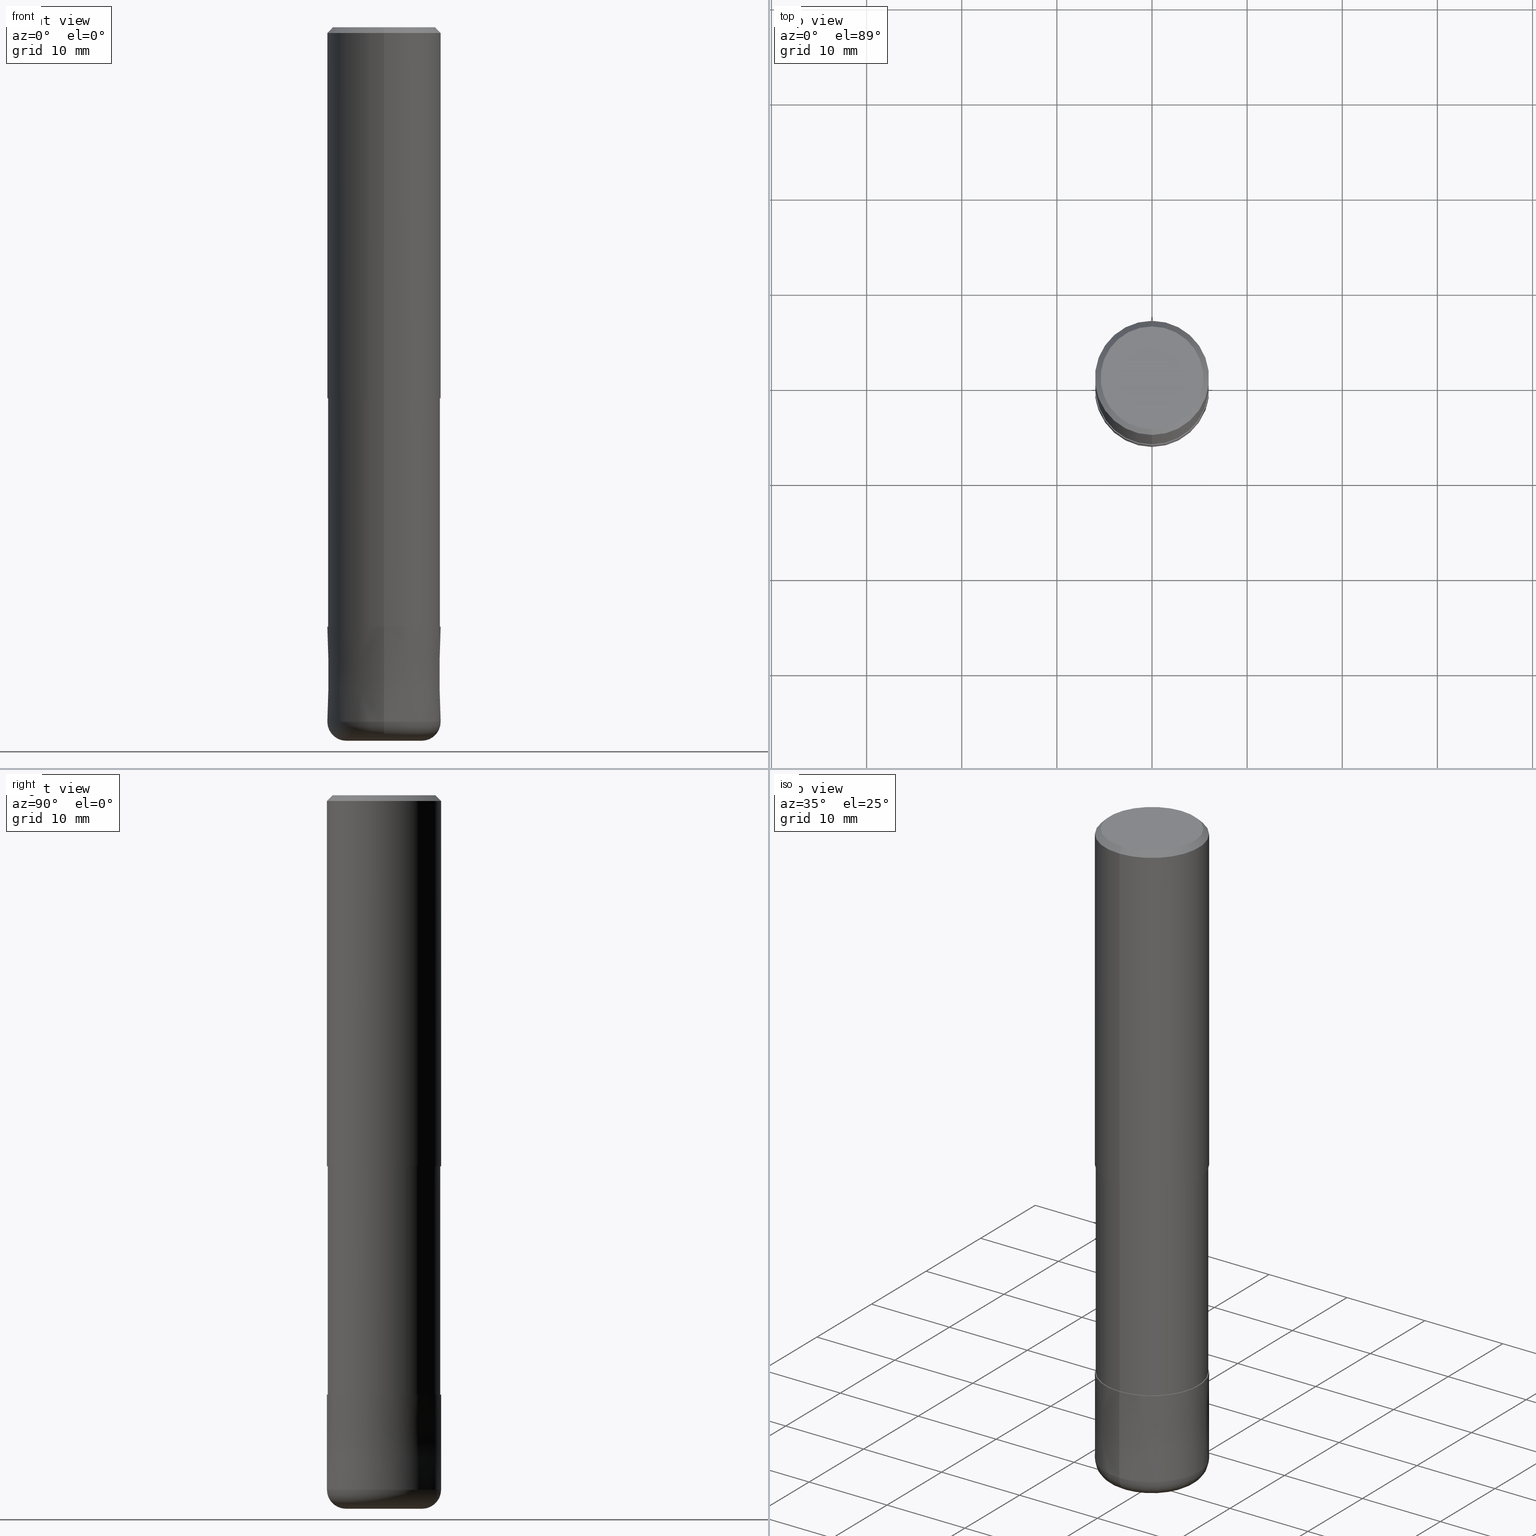
[diagram: canonical four-view strip — front | top / right | iso, engineering-drawing reading convention]
A machine part, canonical four-view strip (front | top / right | iso — engineering-drawing reading convention). The complete STEP part file that produces these views, byte-faithful:
ISO-10303-21;
HEADER;
FILE_DESCRIPTION(('no description'),'unknown implementation level');
FILE_NAME('HRRS4120-20-36S-Huellk.stp','  ',('CIMSOURCE GmbH'),('CADClick - KiM GmbH - www.kimweb.de'),'unknown preprocess','ACIS','unknown authorization');
FILE_SCHEMA(('automotive_design'));
ENDSEC;
DATA;
#1=MECHANICAL_DESIGN_GEOMETRIC_PRESENTATION_REPRESENTATION(' ',(#14,#15,#16,#17,#18,#19,#20,#21,#22,#23,#24,#25,#26,#27,#28,#29,#30,#31,#32,#33,#34,#35,#36,#37,#38,#39,#40,#41,#42,#43,#44,#45,#46,#47,#48,#49,#50,#51,#52,#53,#54,#55,#56,#57,#58,#59,#60,#61,#62,#63,#64,#65,#66,#67,#68,#69,#70,#71,#72),#10);
#2=PRODUCT_DEFINITION_CONTEXT('',#73,'design');
#3=APPLICATION_PROTOCOL_DEFINITION('INTERNATIONAL STANDARD','automotive_design',1994,#73);
#4=PRODUCT_CATEGORY_RELATIONSHIP('NONE','NONE',#74,#75);
#5=SHAPE_DEFINITION_REPRESENTATION(#76,#77);
#6=PRODUCT_DEFINITION_CONTEXT('',#78,'design');
#7=APPLICATION_PROTOCOL_DEFINITION('INTERNATIONAL STANDARD','automotive_design',1994,#78);
#8=PRODUCT_CATEGORY_RELATIONSHIP('NONE','NONE',#79,#80);
#9=SHAPE_DEFINITION_REPRESENTATION(#81,#82);
#10= (GEOMETRIC_REPRESENTATION_CONTEXT(3)GLOBAL_UNCERTAINTY_ASSIGNED_CONTEXT((#85))GLOBAL_UNIT_ASSIGNED_CONTEXT((#87,#88,#89))REPRESENTATION_CONTEXT('NONE','WORKSPACE'));
#14=STYLED_ITEM('',(#91),#92);
#15=STYLED_ITEM('',(#93),#94);
#16=STYLED_ITEM('',(#95),#96);
#17=STYLED_ITEM('',(#97),#98);
#18=STYLED_ITEM('',(#99),#100);
#19=STYLED_ITEM('',(#101),#102);
#20=STYLED_ITEM('',(#103),#104);
#21=STYLED_ITEM('',(#105),#106);
#22=STYLED_ITEM('',(#107),#108);
#23=STYLED_ITEM('',(#109),#110);
#24=STYLED_ITEM('',(#111),#112);
#25=STYLED_ITEM('',(#113),#114);
#26=STYLED_ITEM('',(#115),#116);
#27=STYLED_ITEM('',(#117),#118);
#28=STYLED_ITEM('',(#119),#120);
#29=STYLED_ITEM('',(#121),#122);
#30=STYLED_ITEM('',(#123),#124);
#31=STYLED_ITEM('',(#125),#126);
#32=STYLED_ITEM('',(#127),#128);
#33=STYLED_ITEM('',(#129),#130);
#34=STYLED_ITEM('',(#131),#132);
#35=STYLED_ITEM('',(#133),#134);
#36=STYLED_ITEM('',(#135),#136);
#37=STYLED_ITEM('',(#137),#138);
#38=STYLED_ITEM('',(#139),#140);
#39=STYLED_ITEM('',(#141),#142);
#40=STYLED_ITEM('',(#143),#144);
#41=STYLED_ITEM('',(#145),#146);
#42=STYLED_ITEM('',(#147),#148);
#43=STYLED_ITEM('',(#149),#150);
#44=STYLED_ITEM('',(#151),#152);
#45=STYLED_ITEM('',(#153),#154);
#46=STYLED_ITEM('',(#155),#156);
#47=STYLED_ITEM('',(#157),#158);
#48=STYLED_ITEM('',(#159),#160);
#49=STYLED_ITEM('',(#161),#162);
#50=STYLED_ITEM('',(#163),#164);
#51=STYLED_ITEM('',(#165),#166);
#52=STYLED_ITEM('',(#167),#168);
#53=STYLED_ITEM('',(#169),#170);
#54=STYLED_ITEM('',(#171),#172);
#55=STYLED_ITEM('',(#173),#174);
#56=STYLED_ITEM('',(#175),#176);
#57=STYLED_ITEM('',(#177),#178);
#58=STYLED_ITEM('',(#179),#180);
#59=STYLED_ITEM('',(#181),#182);
#60=STYLED_ITEM('',(#183),#184);
#61=STYLED_ITEM('',(#185),#186);
#62=STYLED_ITEM('',(#187),#188);
#63=STYLED_ITEM('',(#189),#190);
#64=STYLED_ITEM('',(#191),#192);
#65=STYLED_ITEM('',(#193),#194);
#66=STYLED_ITEM('',(#195),#196);
#67=STYLED_ITEM('',(#197),#198);
#68=STYLED_ITEM('',(#199),#200);
#69=STYLED_ITEM('',(#201),#202);
#70=STYLED_ITEM('',(#203),#204);
#71=STYLED_ITEM('',(#205),#206);
#72=STYLED_ITEM('',(#207),#208);
#73=APPLICATION_CONTEXT(' ');
#74=PRODUCT_CATEGORY('part','NONE');
#75=PRODUCT_RELATED_PRODUCT_CATEGORY('detail',' ',(#209));
#76=PRODUCT_DEFINITION_SHAPE('NONE','NONE',#210);
#77=ADVANCED_BREP_SHAPE_REPRESENTATION('1',(#194,#211),#10);
#78=APPLICATION_CONTEXT(' ');
#79=PRODUCT_CATEGORY('part','NONE');
#80=PRODUCT_RELATED_PRODUCT_CATEGORY('detail',' ',(#212));
#81=PRODUCT_DEFINITION_SHAPE('NONE','NONE',#213);
#82=ADVANCED_BREP_SHAPE_REPRESENTATION('2',(#122,#214),#10);
#85=UNCERTAINTY_MEASURE_WITH_UNIT(LENGTH_MEASURE(1.0E-006),#87,'','');
#87= (CONVERSION_BASED_UNIT('MILLIMETRE',#217)LENGTH_UNIT()NAMED_UNIT(#220));
#88= (NAMED_UNIT(#222)PLANE_ANGLE_UNIT()SI_UNIT($,.RADIAN.));
#89= (NAMED_UNIT(#222)SOLID_ANGLE_UNIT()SI_UNIT($,.STERADIAN.));
#91=PRESENTATION_STYLE_ASSIGNMENT((#228));
#92=ADVANCED_FACE('',(#229),#230,.T.);
#93=PRESENTATION_STYLE_ASSIGNMENT((#231));
#94=EDGE_CURVE('',#182,#202,#232,.T.);
#95=PRESENTATION_STYLE_ASSIGNMENT((#233));
#96=EDGE_CURVE('',#116,#174,#234,.T.);
#97=PRESENTATION_STYLE_ASSIGNMENT((#235));
#98=ADVANCED_FACE('',(#236),#237,.T.);
#99=PRESENTATION_STYLE_ASSIGNMENT((#238));
#100=VERTEX_POINT('',#239);
#101=PRESENTATION_STYLE_ASSIGNMENT((#240));
#102=VERTEX_POINT('',#241);
#103=PRESENTATION_STYLE_ASSIGNMENT((#242));
#104=EDGE_CURVE('',#202,#174,#243,.T.);
#105=PRESENTATION_STYLE_ASSIGNMENT((#244));
#106=ADVANCED_FACE('',(#245),#246,.T.);
#107=PRESENTATION_STYLE_ASSIGNMENT((#247));
#108=EDGE_CURVE('',#156,#102,#248,.T.);
#109=PRESENTATION_STYLE_ASSIGNMENT((#249));
#110=EDGE_CURVE('',#142,#120,#250,.T.);
#111=PRESENTATION_STYLE_ASSIGNMENT((#251));
#112=EDGE_CURVE('',#120,#182,#252,.T.);
#113=PRESENTATION_STYLE_ASSIGNMENT((#253));
#114=ADVANCED_FACE('',(#254),#255,.T.);
#115=PRESENTATION_STYLE_ASSIGNMENT((#256));
#116=VERTEX_POINT('',#257);
#117=PRESENTATION_STYLE_ASSIGNMENT((#258));
#118=VERTEX_POINT('',#259);
#119=PRESENTATION_STYLE_ASSIGNMENT((#260));
#120=VERTEX_POINT('',#261);
#121=PRESENTATION_STYLE_ASSIGNMENT((#262));
#122=MANIFOLD_SOLID_BREP('2',#263);
#123=PRESENTATION_STYLE_ASSIGNMENT((#264));
#124=EDGE_CURVE('',#144,#200,#265,.T.);
#125=PRESENTATION_STYLE_ASSIGNMENT((#266));
#126=ADVANCED_FACE('',(#267,#268),#269,.T.);
#127=PRESENTATION_STYLE_ASSIGNMENT((#270));
#128=EDGE_CURVE('',#118,#204,#271,.T.);
#129=PRESENTATION_STYLE_ASSIGNMENT((#272));
#130=EDGE_CURVE('',#204,#118,#273,.T.);
#131=PRESENTATION_STYLE_ASSIGNMENT((#274));
#132=VERTEX_POINT('',#275);
#133=PRESENTATION_STYLE_ASSIGNMENT((#276));
#134=ADVANCED_FACE('',(#277),#278,.T.);
#135=PRESENTATION_STYLE_ASSIGNMENT((#279));
#136=EDGE_CURVE('',#100,#166,#280,.T.);
#137=PRESENTATION_STYLE_ASSIGNMENT((#281));
#138=ADVANCED_FACE('',(#282),#283,.T.);
#139=PRESENTATION_STYLE_ASSIGNMENT((#284));
#140=EDGE_CURVE('',#100,#200,#285,.T.);
#141=PRESENTATION_STYLE_ASSIGNMENT((#286));
#142=VERTEX_POINT('',#287);
#143=PRESENTATION_STYLE_ASSIGNMENT((#288));
#144=VERTEX_POINT('',#289);
#145=PRESENTATION_STYLE_ASSIGNMENT((#290));
#146=EDGE_CURVE('',#200,#100,#291,.T.);
#147=PRESENTATION_STYLE_ASSIGNMENT((#292));
#148=ADVANCED_FACE('',(#293),#294,.T.);
#149=PRESENTATION_STYLE_ASSIGNMENT((#295));
#150=ADVANCED_FACE('',(#296),#297,.T.);
#151=PRESENTATION_STYLE_ASSIGNMENT((#298));
#152=EDGE_CURVE('',#202,#142,#299,.T.);
#153=PRESENTATION_STYLE_ASSIGNMENT((#300));
#154=ADVANCED_FACE('',(#301),#302,.T.);
#155=PRESENTATION_STYLE_ASSIGNMENT((#303));
#156=VERTEX_POINT('',#304);
#157=PRESENTATION_STYLE_ASSIGNMENT((#305));
#158=EDGE_CURVE('',#144,#166,#306,.T.);
#159=PRESENTATION_STYLE_ASSIGNMENT((#307));
#160=EDGE_CURVE('',#156,#132,#308,.T.);
#161=PRESENTATION_STYLE_ASSIGNMENT((#309));
#162=EDGE_CURVE('',#204,#144,#310,.T.);
#163=PRESENTATION_STYLE_ASSIGNMENT((#311));
#164=EDGE_CURVE('',#132,#186,#312,.T.);
#165=PRESENTATION_STYLE_ASSIGNMENT((#313));
#166=VERTEX_POINT('',#314);
#167=PRESENTATION_STYLE_ASSIGNMENT((#315));
#168=EDGE_CURVE('',#166,#144,#316,.T.);
#169=PRESENTATION_STYLE_ASSIGNMENT((#317));
#170=ADVANCED_FACE('',(#318),#319,.T.);
#171=PRESENTATION_STYLE_ASSIGNMENT((#320));
#172=ADVANCED_FACE('',(#321),#322,.T.);
#173=PRESENTATION_STYLE_ASSIGNMENT((#323));
#174=VERTEX_POINT('',#324);
#175=PRESENTATION_STYLE_ASSIGNMENT((#325));
#176=EDGE_CURVE('',#102,#156,#326,.T.);
#177=PRESENTATION_STYLE_ASSIGNMENT((#327));
#178=ADVANCED_FACE('',(#328),#329,.T.);
#179=PRESENTATION_STYLE_ASSIGNMENT((#330));
#180=ADVANCED_FACE('',(#331),#332,.T.);
#181=PRESENTATION_STYLE_ASSIGNMENT((#333));
#182=VERTEX_POINT('',#334);
#183=PRESENTATION_STYLE_ASSIGNMENT((#335));
#184=EDGE_CURVE('',#202,#182,#336,.T.);
#185=PRESENTATION_STYLE_ASSIGNMENT((#337));
#186=VERTEX_POINT('',#338);
#187=PRESENTATION_STYLE_ASSIGNMENT((#339));
#188=EDGE_CURVE('',#174,#116,#340,.T.);
#189=PRESENTATION_STYLE_ASSIGNMENT((#341));
#190=ADVANCED_FACE('',(#342),#343,.T.);
#191=PRESENTATION_STYLE_ASSIGNMENT((#344));
#192=EDGE_CURVE('',#186,#132,#345,.T.);
#193=PRESENTATION_STYLE_ASSIGNMENT((#346));
#194=MANIFOLD_SOLID_BREP('1',#347);
#195=PRESENTATION_STYLE_ASSIGNMENT((#348));
#196=EDGE_CURVE('',#166,#118,#349,.T.);
#197=PRESENTATION_STYLE_ASSIGNMENT((#350));
#198=EDGE_CURVE('',#120,#142,#351,.T.);
#199=PRESENTATION_STYLE_ASSIGNMENT((#352));
#200=VERTEX_POINT('',#353);
#201=PRESENTATION_STYLE_ASSIGNMENT((#354));
#202=VERTEX_POINT('',#355);
#203=PRESENTATION_STYLE_ASSIGNMENT((#356));
#204=VERTEX_POINT('',#357);
#205=PRESENTATION_STYLE_ASSIGNMENT((#358));
#206=EDGE_CURVE('',#186,#102,#359,.T.);
#207=PRESENTATION_STYLE_ASSIGNMENT((#360));
#208=EDGE_CURVE('',#116,#182,#361,.T.);
#209=PRODUCT('1','1','PART-1-DESC',(#362));
#210=PRODUCT_DEFINITION('NONE','NONE',#363,#2);
#211=AXIS2_PLACEMENT_3D('',#364,#365,#366);
#212=PRODUCT('2','2','PART-2-DESC',(#367));
#213=PRODUCT_DEFINITION('NONE','NONE',#368,#6);
#214=AXIS2_PLACEMENT_3D('',#369,#370,#371);
#217=LENGTH_MEASURE_WITH_UNIT(LENGTH_MEASURE(1.0),#372);
#220=DIMENSIONAL_EXPONENTS(1.0,0.0,0.0,0.0,0.0,0.0,0.0);
#222=DIMENSIONAL_EXPONENTS(0.0,0.0,0.0,0.0,0.0,0.0,0.0);
#228=SURFACE_STYLE_USAGE(.BOTH.,#373);
#229=FACE_OUTER_BOUND('',#374,.T.);
#230=PLANE('',#375);
#231=CURVE_STYLE('',#376,POSITIVE_LENGTH_MEASURE(1.0E-006),#377);
#232=CIRCLE('',#378,6.0);
#233=CURVE_STYLE('',#379,POSITIVE_LENGTH_MEASURE(1.0E-006),#380);
#234=CIRCLE('',#381,4.0);
#235=SURFACE_STYLE_USAGE(.BOTH.,#382);
#236=FACE_OUTER_BOUND('',#383,.T.);
#237=PLANE('',#384);
#238=POINT_STYLE(' ',#385,POSITIVE_LENGTH_MEASURE(1.0E-006),#386);
#239=CARTESIAN_POINT('',(7.34763812293426E-016,-6.0,-39.0));
#240=POINT_STYLE(' ',#387,POSITIVE_LENGTH_MEASURE(1.0E-006),#388);
#241=CARTESIAN_POINT('',(0.0,5.90995,-63.0));
#242=CURVE_STYLE('',#389,POSITIVE_LENGTH_MEASURE(1.0E-006),#390);
#243=CIRCLE('',#391,2.0);
#244=SURFACE_STYLE_USAGE(.BOTH.,#392);
#245=FACE_OUTER_BOUND('',#393,.T.);
#246=TOROIDAL_SURFACE('',#394,4.0,2.0);
#247=CURVE_STYLE('',#395,POSITIVE_LENGTH_MEASURE(1.0E-006),#396);
#248=CIRCLE('',#397,5.90995);
#249=CURVE_STYLE('',#398,POSITIVE_LENGTH_MEASURE(1.0E-006),#399);
#250=CIRCLE('',#400,5.9999);
#251=CURVE_STYLE('',#401,POSITIVE_LENGTH_MEASURE(1.0E-006),#402);
#252=LINE('',#403,#404);
#253=SURFACE_STYLE_USAGE(.BOTH.,#405);
#254=FACE_OUTER_BOUND('',#406,.T.);
#255=CYLINDRICAL_SURFACE('',#407,6.0);
#256=POINT_STYLE(' ',#408,POSITIVE_LENGTH_MEASURE(1.0E-006),#409);
#257=CARTESIAN_POINT('',(0.0,4.0,-75.0));
#258=POINT_STYLE(' ',#410,POSITIVE_LENGTH_MEASURE(1.0E-006),#411);
#259=CARTESIAN_POINT('',(6.61287431064084E-016,-5.4,0.0));
#260=POINT_STYLE(' ',#412,POSITIVE_LENGTH_MEASURE(1.0E-006),#413);
#261=CARTESIAN_POINT('',(0.0,5.9999,-63.0));
#262=SURFACE_STYLE_USAGE(.BOTH.,#414);
#263=CLOSED_SHELL('',(#106,#154,#98,#170,#172,#92));
#264=CURVE_STYLE('',#415,POSITIVE_LENGTH_MEASURE(1.0E-006),#416);
#265=LINE('',#417,#418);
#266=SURFACE_STYLE_USAGE(.BOTH.,#419);
#267=FACE_OUTER_BOUND('',#420,.T.);
#268=FACE_BOUND('',#421,.T.);
#269=PLANE('',#422);
#270=CURVE_STYLE('',#423,POSITIVE_LENGTH_MEASURE(1.0E-006),#424);
#271=CIRCLE('',#425,5.4);
#272=CURVE_STYLE('',#426,POSITIVE_LENGTH_MEASURE(1.0E-006),#427);
#273=CIRCLE('',#428,5.4);
#274=POINT_STYLE(' ',#429,POSITIVE_LENGTH_MEASURE(1.0E-006),#430);
#275=CARTESIAN_POINT('',(7.23736232077256E-016,-5.90995,-39.0));
#276=SURFACE_STYLE_USAGE(.BOTH.,#431);
#277=FACE_OUTER_BOUND('',#432,.T.);
#278=CYLINDRICAL_SURFACE('',#433,5.90995);
#279=CURVE_STYLE('',#434,POSITIVE_LENGTH_MEASURE(1.0E-006),#435);
#280=LINE('',#436,#437);
#281=SURFACE_STYLE_USAGE(.BOTH.,#438);
#282=FACE_OUTER_BOUND('',#439,.T.);
#283=PLANE('',#440);
#284=CURVE_STYLE('',#441,POSITIVE_LENGTH_MEASURE(1.0E-006),#442);
#285=CIRCLE('',#443,6.0);
#286=POINT_STYLE(' ',#444,POSITIVE_LENGTH_MEASURE(1.0E-006),#445);
#287=CARTESIAN_POINT('',(7.34751566229888E-016,-5.9999,-63.0));
#288=POINT_STYLE(' ',#446,POSITIVE_LENGTH_MEASURE(1.0E-006),#447);
#289=CARTESIAN_POINT('',(0.0,6.0,-0.600000000000001));
#290=CURVE_STYLE('',#448,POSITIVE_LENGTH_MEASURE(1.0E-006),#449);
#291=CIRCLE('',#450,6.0);
#292=SURFACE_STYLE_USAGE(.BOTH.,#451);
#293=FACE_OUTER_BOUND('',#452,.T.);
#294=CONICAL_SURFACE('',#453,5.7,0.785398163397447);
#295=SURFACE_STYLE_USAGE(.BOTH.,#454);
#296=FACE_OUTER_BOUND('',#455,.T.);
#297=CYLINDRICAL_SURFACE('',#456,6.0);
#298=CURVE_STYLE('',#457,POSITIVE_LENGTH_MEASURE(1.0E-006),#458);
#299=LINE('',#459,#460);
#300=SURFACE_STYLE_USAGE(.BOTH.,#461);
#301=FACE_OUTER_BOUND('',#462,.T.);
#302=CONICAL_SURFACE('',#463,5.99995,9.99999999964336E-006);
#303=POINT_STYLE(' ',#464,POSITIVE_LENGTH_MEASURE(1.0E-006),#465);
#304=CARTESIAN_POINT('',(7.23736232077256E-016,-5.90995,-63.0));
#305=CURVE_STYLE('',#466,POSITIVE_LENGTH_MEASURE(1.0E-006),#467);
#306=CIRCLE('',#468,6.0);
#307=CURVE_STYLE('',#469,POSITIVE_LENGTH_MEASURE(1.0E-006),#470);
#308=LINE('',#471,#472);
#309=CURVE_STYLE('',#473,POSITIVE_LENGTH_MEASURE(1.0E-006),#474);
#310=LINE('',#475,#476);
#311=CURVE_STYLE('',#477,POSITIVE_LENGTH_MEASURE(1.0E-006),#478);
#312=CIRCLE('',#479,5.90995);
#313=POINT_STYLE(' ',#480,POSITIVE_LENGTH_MEASURE(1.0E-006),#481);
#314=CARTESIAN_POINT('',(7.34763812293426E-016,-6.0,-0.600000000000001));
#315=CURVE_STYLE('',#482,POSITIVE_LENGTH_MEASURE(1.0E-006),#483);
#316=CIRCLE('',#484,6.0);
#317=SURFACE_STYLE_USAGE(.BOTH.,#485);
#318=FACE_OUTER_BOUND('',#486,.T.);
#319=CONICAL_SURFACE('',#487,5.99995,9.99999999964336E-006);
#320=SURFACE_STYLE_USAGE(.BOTH.,#488);
#321=FACE_OUTER_BOUND('',#489,.T.);
#322=TOROIDAL_SURFACE('',#490,4.0,2.0);
#323=POINT_STYLE(' ',#491,POSITIVE_LENGTH_MEASURE(1.0E-006),#492);
#324=CARTESIAN_POINT('',(4.89842541528951E-016,-4.0,-75.0));
#325=CURVE_STYLE('',#493,POSITIVE_LENGTH_MEASURE(1.0E-006),#494);
#326=CIRCLE('',#495,5.90995);
#327=SURFACE_STYLE_USAGE(.BOTH.,#496);
#328=FACE_OUTER_BOUND('',#497,.T.);
#329=CYLINDRICAL_SURFACE('',#498,5.90995);
#330=SURFACE_STYLE_USAGE(.BOTH.,#499);
#331=FACE_OUTER_BOUND('',#500,.T.);
#332=PLANE('',#501);
#333=POINT_STYLE(' ',#502,POSITIVE_LENGTH_MEASURE(1.0E-006),#503);
#334=CARTESIAN_POINT('',(0.0,6.0,-73.0));
#335=CURVE_STYLE('',#504,POSITIVE_LENGTH_MEASURE(1.0E-006),#505);
#336=CIRCLE('',#506,6.0);
#337=POINT_STYLE(' ',#507,POSITIVE_LENGTH_MEASURE(1.0E-006),#508);
#338=CARTESIAN_POINT('',(0.0,5.90995,-39.0));
#339=CURVE_STYLE('',#509,POSITIVE_LENGTH_MEASURE(1.0E-006),#510);
#340=CIRCLE('',#511,4.0);
#341=SURFACE_STYLE_USAGE(.BOTH.,#512);
#342=FACE_OUTER_BOUND('',#513,.T.);
#343=CONICAL_SURFACE('',#514,5.7,0.785398163397447);
#344=CURVE_STYLE('',#515,POSITIVE_LENGTH_MEASURE(1.0E-006),#516);
#345=CIRCLE('',#517,5.90995);
#346=SURFACE_STYLE_USAGE(.BOTH.,#518);
#347=CLOSED_SHELL('',(#178,#150,#148,#126,#180,#190,#114,#134,#138));
#348=CURVE_STYLE('',#519,POSITIVE_LENGTH_MEASURE(1.0E-006),#520);
#349=LINE('',#521,#522);
#350=CURVE_STYLE('',#523,POSITIVE_LENGTH_MEASURE(1.0E-006),#524);
#351=CIRCLE('',#525,5.9999);
#352=POINT_STYLE(' ',#526,POSITIVE_LENGTH_MEASURE(1.0E-006),#527);
#353=CARTESIAN_POINT('',(0.0,6.0,-39.0));
#354=POINT_STYLE(' ',#528,POSITIVE_LENGTH_MEASURE(1.0E-006),#529);
#355=CARTESIAN_POINT('',(7.34763812293427E-016,-6.0,-73.0));
#356=POINT_STYLE(' ',#530,POSITIVE_LENGTH_MEASURE(1.0E-006),#531);
#357=CARTESIAN_POINT('',(0.0,5.4,0.0));
#358=CURVE_STYLE('',#532,POSITIVE_LENGTH_MEASURE(1.0E-006),#533);
#359=LINE('',#534,#535);
#360=CURVE_STYLE('',#536,POSITIVE_LENGTH_MEASURE(1.0E-006),#537);
#361=CIRCLE('',#538,2.0);
#362=PRODUCT_CONTEXT('',#73,'mechanical');
#363=PRODUCT_DEFINITION_FORMATION_WITH_SPECIFIED_SOURCE(' ','NONE',#209,.NOT_KNOWN.);
#364=CARTESIAN_POINT('',(0.0,0.0,0.0));
#365=DIRECTION('',(0.0,0.0,1.0));
#366=DIRECTION('',(1.0,0.0,0.0));
#367=PRODUCT_CONTEXT('',#78,'mechanical');
#368=PRODUCT_DEFINITION_FORMATION_WITH_SPECIFIED_SOURCE(' ','NONE',#212,.NOT_KNOWN.);
#369=CARTESIAN_POINT('',(0.0,0.0,0.0));
#370=DIRECTION('',(0.0,0.0,1.0));
#371=DIRECTION('',(1.0,0.0,0.0));
#372= (NAMED_UNIT(#220)LENGTH_UNIT()SI_UNIT(.MILLI.,.METRE.));
#373=SURFACE_SIDE_STYLE('',(#540));
#374=EDGE_LOOP('',(#541,#542));
#375=AXIS2_PLACEMENT_3D('',#543,#544,#545);
#376=DRAUGHTING_PRE_DEFINED_CURVE_FONT('continuous');
#377=COLOUR_RGB('',0.800000011920929,0.800000011920929,0.800000011920929);
#378=AXIS2_PLACEMENT_3D('',#546,#547,#548);
#379=DRAUGHTING_PRE_DEFINED_CURVE_FONT('continuous');
#380=COLOUR_RGB('',0.800000011920929,0.800000011920929,0.800000011920929);
#381=AXIS2_PLACEMENT_3D('',#549,#550,#551);
#382=SURFACE_SIDE_STYLE('',(#552));
#383=EDGE_LOOP('',(#553,#554));
#384=AXIS2_PLACEMENT_3D('',#555,#556,#557);
#385=PRE_DEFINED_MARKER('');
#386=COLOUR_RGB('',0.498039215803146,0.498039215803146,0.498039215803146);
#387=PRE_DEFINED_MARKER('');
#388=COLOUR_RGB('',0.498039215803146,0.498039215803146,0.498039215803146);
#389=DRAUGHTING_PRE_DEFINED_CURVE_FONT('continuous');
#390=COLOUR_RGB('',0.800000011920929,0.800000011920929,0.800000011920929);
#391=AXIS2_PLACEMENT_3D('',#558,#559,#560);
#392=SURFACE_SIDE_STYLE('',(#561));
#393=EDGE_LOOP('',(#562,#563,#564,#565));
#394=AXIS2_PLACEMENT_3D('',#566,#567,#568);
#395=DRAUGHTING_PRE_DEFINED_CURVE_FONT('continuous');
#396=COLOUR_RGB('',0.498039215803146,0.498039215803146,0.498039215803146);
#397=AXIS2_PLACEMENT_3D('',#569,#570,#571);
#398=DRAUGHTING_PRE_DEFINED_CURVE_FONT('continuous');
#399=COLOUR_RGB('',0.800000011920929,0.800000011920929,0.800000011920929);
#400=AXIS2_PLACEMENT_3D('',#572,#573,#574);
#401=DRAUGHTING_PRE_DEFINED_CURVE_FONT('continuous');
#402=COLOUR_RGB('',0.800000011920929,0.800000011920929,0.800000011920929);
#403=CARTESIAN_POINT('',(-7.34757689261657E-016,5.99995,-68.0));
#404=VECTOR('',#575,1.0);
#405=SURFACE_SIDE_STYLE('',(#576));
#406=EDGE_LOOP('',(#577,#578,#579,#580));
#407=AXIS2_PLACEMENT_3D('',#581,#582,#583);
#408=PRE_DEFINED_MARKER('');
#409=COLOUR_RGB('',0.800000011920929,0.800000011920929,0.800000011920929);
#410=PRE_DEFINED_MARKER('');
#411=COLOUR_RGB('',0.498039215803146,0.498039215803146,0.498039215803146);
#412=PRE_DEFINED_MARKER('');
#413=COLOUR_RGB('',0.800000011920929,0.800000011920929,0.800000011920929);
#414=SURFACE_SIDE_STYLE('',(#584));
#415=DRAUGHTING_PRE_DEFINED_CURVE_FONT('continuous');
#416=COLOUR_RGB('',0.498039215803146,0.498039215803146,0.498039215803146);
#417=CARTESIAN_POINT('',(-7.34763812293426E-016,6.0,-19.8));
#418=VECTOR('',#585,1.0);
#419=SURFACE_SIDE_STYLE('',(#586));
#420=EDGE_LOOP('',(#587,#588));
#421=EDGE_LOOP('',(#589,#590));
#422=AXIS2_PLACEMENT_3D('',#591,#592,#593);
#423=DRAUGHTING_PRE_DEFINED_CURVE_FONT('continuous');
#424=COLOUR_RGB('',0.498039215803146,0.498039215803146,0.498039215803146);
#425=AXIS2_PLACEMENT_3D('',#594,#595,#596);
#426=DRAUGHTING_PRE_DEFINED_CURVE_FONT('continuous');
#427=COLOUR_RGB('',0.498039215803146,0.498039215803146,0.498039215803146);
#428=AXIS2_PLACEMENT_3D('',#597,#598,#599);
#429=PRE_DEFINED_MARKER('');
#430=COLOUR_RGB('',0.498039215803146,0.498039215803146,0.498039215803146);
#431=SURFACE_SIDE_STYLE('',(#600));
#432=EDGE_LOOP('',(#601,#602,#603,#604));
#433=AXIS2_PLACEMENT_3D('',#605,#606,#607);
#434=DRAUGHTING_PRE_DEFINED_CURVE_FONT('continuous');
#435=COLOUR_RGB('',0.498039215803146,0.498039215803146,0.498039215803146);
#436=CARTESIAN_POINT('',(7.34763812293426E-016,-6.0,-19.8));
#437=VECTOR('',#608,1.0);
#438=SURFACE_SIDE_STYLE('',(#609));
#439=EDGE_LOOP('',(#610,#611));
#440=AXIS2_PLACEMENT_3D('',#612,#613,#614);
#441=DRAUGHTING_PRE_DEFINED_CURVE_FONT('continuous');
#442=COLOUR_RGB('',0.498039215803146,0.498039215803146,0.498039215803146);
#443=AXIS2_PLACEMENT_3D('',#615,#616,#617);
#444=PRE_DEFINED_MARKER('');
#445=COLOUR_RGB('',0.800000011920929,0.800000011920929,0.800000011920929);
#446=PRE_DEFINED_MARKER('');
#447=COLOUR_RGB('',0.498039215803146,0.498039215803146,0.498039215803146);
#448=DRAUGHTING_PRE_DEFINED_CURVE_FONT('continuous');
#449=COLOUR_RGB('',0.498039215803146,0.498039215803146,0.498039215803146);
#450=AXIS2_PLACEMENT_3D('',#618,#619,#620);
#451=SURFACE_SIDE_STYLE('',(#621));
#452=EDGE_LOOP('',(#622,#623,#624,#625));
#453=AXIS2_PLACEMENT_3D('',#626,#627,#628);
#454=SURFACE_SIDE_STYLE('',(#629));
#455=EDGE_LOOP('',(#630,#631,#632,#633));
#456=AXIS2_PLACEMENT_3D('',#634,#635,#636);
#457=DRAUGHTING_PRE_DEFINED_CURVE_FONT('continuous');
#458=COLOUR_RGB('',0.800000011920929,0.800000011920929,0.800000011920929);
#459=CARTESIAN_POINT('',(7.34757689261657E-016,-5.99995,-68.0));
#460=VECTOR('',#637,1.0);
#461=SURFACE_SIDE_STYLE('',(#638));
#462=EDGE_LOOP('',(#639,#640,#641,#642));
#463=AXIS2_PLACEMENT_3D('',#643,#644,#645);
#464=PRE_DEFINED_MARKER('');
#465=COLOUR_RGB('',0.498039215803146,0.498039215803146,0.498039215803146);
#466=DRAUGHTING_PRE_DEFINED_CURVE_FONT('continuous');
#467=COLOUR_RGB('',0.498039215803146,0.498039215803146,0.498039215803146);
#468=AXIS2_PLACEMENT_3D('',#646,#647,#648);
#469=DRAUGHTING_PRE_DEFINED_CURVE_FONT('continuous');
#470=COLOUR_RGB('',0.498039215803146,0.498039215803146,0.498039215803146);
#471=CARTESIAN_POINT('',(7.23736232077256E-016,-5.90995,-51.0));
#472=VECTOR('',#649,1.0);
#473=DRAUGHTING_PRE_DEFINED_CURVE_FONT('continuous');
#474=COLOUR_RGB('',0.498039215803146,0.498039215803146,0.498039215803146);
#475=CARTESIAN_POINT('',(-6.98025621678755E-016,5.7,-0.300000000000004));
#476=VECTOR('',#650,1.0);
#477=DRAUGHTING_PRE_DEFINED_CURVE_FONT('continuous');
#478=COLOUR_RGB('',0.498039215803146,0.498039215803146,0.498039215803146);
#479=AXIS2_PLACEMENT_3D('',#651,#652,#653);
#480=PRE_DEFINED_MARKER('');
#481=COLOUR_RGB('',0.498039215803146,0.498039215803146,0.498039215803146);
#482=DRAUGHTING_PRE_DEFINED_CURVE_FONT('continuous');
#483=COLOUR_RGB('',0.498039215803146,0.498039215803146,0.498039215803146);
#484=AXIS2_PLACEMENT_3D('',#654,#655,#656);
#485=SURFACE_SIDE_STYLE('',(#657));
#486=EDGE_LOOP('',(#658,#659,#660,#661));
#487=AXIS2_PLACEMENT_3D('',#662,#663,#664);
#488=SURFACE_SIDE_STYLE('',(#665));
#489=EDGE_LOOP('',(#666,#667,#668,#669));
#490=AXIS2_PLACEMENT_3D('',#670,#671,#672);
#491=PRE_DEFINED_MARKER('');
#492=COLOUR_RGB('',0.800000011920929,0.800000011920929,0.800000011920929);
#493=DRAUGHTING_PRE_DEFINED_CURVE_FONT('continuous');
#494=COLOUR_RGB('',0.498039215803146,0.498039215803146,0.498039215803146);
#495=AXIS2_PLACEMENT_3D('',#673,#674,#675);
#496=SURFACE_SIDE_STYLE('',(#676));
#497=EDGE_LOOP('',(#677,#678,#679,#680));
#498=AXIS2_PLACEMENT_3D('',#681,#682,#683);
#499=SURFACE_SIDE_STYLE('',(#684));
#500=EDGE_LOOP('',(#685,#686));
#501=AXIS2_PLACEMENT_3D('',#687,#688,#689);
#502=PRE_DEFINED_MARKER('');
#503=COLOUR_RGB('',0.800000011920929,0.800000011920929,0.800000011920929);
#504=DRAUGHTING_PRE_DEFINED_CURVE_FONT('continuous');
#505=COLOUR_RGB('',0.800000011920929,0.800000011920929,0.800000011920929);
#506=AXIS2_PLACEMENT_3D('',#690,#691,#692);
#507=PRE_DEFINED_MARKER('');
#508=COLOUR_RGB('',0.498039215803146,0.498039215803146,0.498039215803146);
#509=DRAUGHTING_PRE_DEFINED_CURVE_FONT('continuous');
#510=COLOUR_RGB('',0.800000011920929,0.800000011920929,0.800000011920929);
#511=AXIS2_PLACEMENT_3D('',#693,#694,#695);
#512=SURFACE_SIDE_STYLE('',(#696));
#513=EDGE_LOOP('',(#697,#698,#699,#700));
#514=AXIS2_PLACEMENT_3D('',#701,#702,#703);
#515=DRAUGHTING_PRE_DEFINED_CURVE_FONT('continuous');
#516=COLOUR_RGB('',0.498039215803146,0.498039215803146,0.498039215803146);
#517=AXIS2_PLACEMENT_3D('',#704,#705,#706);
#518=SURFACE_SIDE_STYLE('',(#707));
#519=DRAUGHTING_PRE_DEFINED_CURVE_FONT('continuous');
#520=COLOUR_RGB('',0.498039215803146,0.498039215803146,0.498039215803146);
#521=CARTESIAN_POINT('',(6.98025621678755E-016,-5.7,-0.300000000000004));
#522=VECTOR('',#708,1.0);
#523=DRAUGHTING_PRE_DEFINED_CURVE_FONT('continuous');
#524=COLOUR_RGB('',0.800000011920929,0.800000011920929,0.800000011920929);
#525=AXIS2_PLACEMENT_3D('',#709,#710,#711);
#526=PRE_DEFINED_MARKER('');
#527=COLOUR_RGB('',0.498039215803146,0.498039215803146,0.498039215803146);
#528=PRE_DEFINED_MARKER('');
#529=COLOUR_RGB('',0.800000011920929,0.800000011920929,0.800000011920929);
#530=PRE_DEFINED_MARKER('');
#531=COLOUR_RGB('',0.498039215803146,0.498039215803146,0.498039215803146);
#532=DRAUGHTING_PRE_DEFINED_CURVE_FONT('continuous');
#533=COLOUR_RGB('',0.498039215803146,0.498039215803146,0.498039215803146);
#534=CARTESIAN_POINT('',(-7.23736232077256E-016,5.90995,-51.0));
#535=VECTOR('',#712,1.0);
#536=DRAUGHTING_PRE_DEFINED_CURVE_FONT('continuous');
#537=COLOUR_RGB('',0.800000011920929,0.800000011920929,0.800000011920929);
#538=AXIS2_PLACEMENT_3D('',#713,#714,#715);
#540=SURFACE_STYLE_FILL_AREA(#716);
#541=ORIENTED_EDGE('',*,*,#96,.T.);
#542=ORIENTED_EDGE('',*,*,#188,.T.);
#543=CARTESIAN_POINT('',(0.0,2.0,-75.0));
#544=DIRECTION('',(0.0,0.0,-1.0));
#545=DIRECTION('',(0.0,1.0,0.0));
#546=CARTESIAN_POINT('',(0.0,0.0,-73.0));
#547=DIRECTION('',(0.0,0.0,-1.0));
#548=DIRECTION('',(0.0,1.0,0.0));
#549=CARTESIAN_POINT('',(0.0,0.0,-75.0));
#550=DIRECTION('',(0.0,0.0,-1.0));
#551=DIRECTION('',(0.0,1.0,0.0));
#552=SURFACE_STYLE_FILL_AREA(#717);
#553=ORIENTED_EDGE('',*,*,#198,.F.);
#554=ORIENTED_EDGE('',*,*,#110,.F.);
#555=CARTESIAN_POINT('',(0.0,2.99995,-63.0));
#556=DIRECTION('',(-0.0,0.0,1.0));
#557=DIRECTION('',(0.0,-1.0,0.0));
#558=CARTESIAN_POINT('',(4.89842541528951E-016,-4.0,-73.0));
#559=DIRECTION('',(1.0,1.22460635382238E-016,0.0));
#560=DIRECTION('',(1.22460635382238E-016,-1.0,-0.0));
#561=SURFACE_STYLE_FILL_AREA(#718);
#562=ORIENTED_EDGE('',*,*,#104,.F.);
#563=ORIENTED_EDGE('',*,*,#184,.T.);
#564=ORIENTED_EDGE('',*,*,#208,.F.);
#565=ORIENTED_EDGE('',*,*,#188,.F.);
#566=CARTESIAN_POINT('',(0.0,0.0,-73.0));
#567=DIRECTION('',(0.0,0.0,-1.0));
#568=DIRECTION('',(0.0,-1.0,0.0));
#569=CARTESIAN_POINT('',(0.0,0.0,-63.0));
#570=DIRECTION('',(0.0,0.0,-1.0));
#571=DIRECTION('',(0.0,1.0,0.0));
#572=CARTESIAN_POINT('',(0.0,0.0,-63.0));
#573=DIRECTION('',(0.0,0.0,-1.0));
#574=DIRECTION('',(0.0,1.0,0.0));
#575=DIRECTION('',(-1.22460635375829E-021,9.99999999947669E-006,-0.99999999995));
#576=SURFACE_STYLE_FILL_AREA(#719);
#577=ORIENTED_EDGE('',*,*,#124,.T.);
#578=ORIENTED_EDGE('',*,*,#140,.F.);
#579=ORIENTED_EDGE('',*,*,#136,.T.);
#580=ORIENTED_EDGE('',*,*,#168,.T.);
#581=CARTESIAN_POINT('',(0.0,0.0,-19.8));
#582=DIRECTION('',(-0.0,-0.0,1.0));
#583=DIRECTION('',(0.0,1.0,0.0));
#584=SURFACE_STYLE_FILL_AREA(#720);
#585=DIRECTION('',(0.0,0.0,-1.0));
#586=SURFACE_STYLE_FILL_AREA(#721);
#587=ORIENTED_EDGE('',*,*,#146,.T.);
#588=ORIENTED_EDGE('',*,*,#140,.T.);
#589=ORIENTED_EDGE('',*,*,#192,.F.);
#590=ORIENTED_EDGE('',*,*,#164,.F.);
#591=CARTESIAN_POINT('',(0.0,3.0,-39.0));
#592=DIRECTION('',(0.0,0.0,-1.0));
#593=DIRECTION('',(0.0,1.0,0.0));
#594=CARTESIAN_POINT('',(0.0,0.0,0.0));
#595=DIRECTION('',(0.0,0.0,-1.0));
#596=DIRECTION('',(0.0,1.0,0.0));
#597=CARTESIAN_POINT('',(0.0,0.0,0.0));
#598=DIRECTION('',(0.0,0.0,-1.0));
#599=DIRECTION('',(0.0,1.0,0.0));
#600=SURFACE_STYLE_FILL_AREA(#722);
#601=ORIENTED_EDGE('',*,*,#206,.T.);
#602=ORIENTED_EDGE('',*,*,#108,.F.);
#603=ORIENTED_EDGE('',*,*,#160,.T.);
#604=ORIENTED_EDGE('',*,*,#164,.T.);
#605=CARTESIAN_POINT('',(0.0,0.0,-51.0));
#606=DIRECTION('',(-0.0,-0.0,1.0));
#607=DIRECTION('',(0.0,1.0,0.0));
#608=DIRECTION('',(-0.0,-0.0,1.0));
#609=SURFACE_STYLE_FILL_AREA(#723);
#610=ORIENTED_EDGE('',*,*,#176,.T.);
#611=ORIENTED_EDGE('',*,*,#108,.T.);
#612=CARTESIAN_POINT('',(0.0,2.954975,-63.0));
#613=DIRECTION('',(0.0,0.0,-1.0));
#614=DIRECTION('',(0.0,1.0,0.0));
#615=CARTESIAN_POINT('',(0.0,0.0,-39.0));
#616=DIRECTION('',(0.0,0.0,-1.0));
#617=DIRECTION('',(0.0,1.0,0.0));
#618=CARTESIAN_POINT('',(0.0,0.0,-39.0));
#619=DIRECTION('',(0.0,0.0,-1.0));
#620=DIRECTION('',(0.0,1.0,0.0));
#621=SURFACE_STYLE_FILL_AREA(#724);
#622=ORIENTED_EDGE('',*,*,#162,.F.);
#623=ORIENTED_EDGE('',*,*,#130,.T.);
#624=ORIENTED_EDGE('',*,*,#196,.F.);
#625=ORIENTED_EDGE('',*,*,#158,.F.);
#626=CARTESIAN_POINT('',(0.0,0.0,-0.300000000000004));
#627=DIRECTION('',(0.0,-0.0,-1.0));
#628=DIRECTION('',(0.0,1.0,0.0));
#629=SURFACE_STYLE_FILL_AREA(#725);
#630=ORIENTED_EDGE('',*,*,#124,.F.);
#631=ORIENTED_EDGE('',*,*,#158,.T.);
#632=ORIENTED_EDGE('',*,*,#136,.F.);
#633=ORIENTED_EDGE('',*,*,#146,.F.);
#634=CARTESIAN_POINT('',(0.0,0.0,-19.8));
#635=DIRECTION('',(-0.0,-0.0,1.0));
#636=DIRECTION('',(0.0,1.0,0.0));
#637=DIRECTION('',(-1.22460635375829E-021,9.99999999947669E-006,0.99999999995));
#638=SURFACE_STYLE_FILL_AREA(#726);
#639=ORIENTED_EDGE('',*,*,#112,.F.);
#640=ORIENTED_EDGE('',*,*,#198,.T.);
#641=ORIENTED_EDGE('',*,*,#152,.F.);
#642=ORIENTED_EDGE('',*,*,#94,.F.);
#643=CARTESIAN_POINT('',(0.0,0.0,-68.0));
#644=DIRECTION('',(0.0,-0.0,-1.0));
#645=DIRECTION('',(0.0,1.0,0.0));
#646=CARTESIAN_POINT('',(0.0,0.0,-0.600000000000001));
#647=DIRECTION('',(0.0,0.0,-1.0));
#648=DIRECTION('',(0.0,1.0,0.0));
#649=DIRECTION('',(-0.0,-0.0,1.0));
#650=DIRECTION('',(-8.65927457071934E-017,0.707106781186546,-0.707106781186549));
#651=CARTESIAN_POINT('',(0.0,0.0,-39.0));
#652=DIRECTION('',(0.0,0.0,-1.0));
#653=DIRECTION('',(0.0,1.0,0.0));
#654=CARTESIAN_POINT('',(0.0,0.0,-0.600000000000001));
#655=DIRECTION('',(0.0,0.0,-1.0));
#656=DIRECTION('',(0.0,1.0,0.0));
#657=SURFACE_STYLE_FILL_AREA(#727);
#658=ORIENTED_EDGE('',*,*,#112,.T.);
#659=ORIENTED_EDGE('',*,*,#184,.F.);
#660=ORIENTED_EDGE('',*,*,#152,.T.);
#661=ORIENTED_EDGE('',*,*,#110,.T.);
#662=CARTESIAN_POINT('',(0.0,0.0,-68.0));
#663=DIRECTION('',(0.0,-0.0,-1.0));
#664=DIRECTION('',(0.0,1.0,0.0));
#665=SURFACE_STYLE_FILL_AREA(#728);
#666=ORIENTED_EDGE('',*,*,#104,.T.);
#667=ORIENTED_EDGE('',*,*,#96,.F.);
#668=ORIENTED_EDGE('',*,*,#208,.T.);
#669=ORIENTED_EDGE('',*,*,#94,.T.);
#670=CARTESIAN_POINT('',(0.0,0.0,-73.0));
#671=DIRECTION('',(0.0,0.0,-1.0));
#672=DIRECTION('',(0.0,-1.0,0.0));
#673=CARTESIAN_POINT('',(0.0,0.0,-63.0));
#674=DIRECTION('',(0.0,0.0,-1.0));
#675=DIRECTION('',(0.0,1.0,0.0));
#676=SURFACE_STYLE_FILL_AREA(#729);
#677=ORIENTED_EDGE('',*,*,#206,.F.);
#678=ORIENTED_EDGE('',*,*,#192,.T.);
#679=ORIENTED_EDGE('',*,*,#160,.F.);
#680=ORIENTED_EDGE('',*,*,#176,.F.);
#681=CARTESIAN_POINT('',(0.0,0.0,-51.0));
#682=DIRECTION('',(-0.0,-0.0,1.0));
#683=DIRECTION('',(0.0,1.0,0.0));
#684=SURFACE_STYLE_FILL_AREA(#730);
#685=ORIENTED_EDGE('',*,*,#130,.F.);
#686=ORIENTED_EDGE('',*,*,#128,.F.);
#687=CARTESIAN_POINT('',(0.0,2.7,0.0));
#688=DIRECTION('',(-0.0,0.0,1.0));
#689=DIRECTION('',(0.0,-1.0,0.0));
#690=CARTESIAN_POINT('',(0.0,0.0,-73.0));
#691=DIRECTION('',(0.0,0.0,-1.0));
#692=DIRECTION('',(0.0,1.0,0.0));
#693=CARTESIAN_POINT('',(0.0,0.0,-75.0));
#694=DIRECTION('',(0.0,0.0,-1.0));
#695=DIRECTION('',(0.0,1.0,0.0));
#696=SURFACE_STYLE_FILL_AREA(#731);
#697=ORIENTED_EDGE('',*,*,#162,.T.);
#698=ORIENTED_EDGE('',*,*,#168,.F.);
#699=ORIENTED_EDGE('',*,*,#196,.T.);
#700=ORIENTED_EDGE('',*,*,#128,.T.);
#701=CARTESIAN_POINT('',(0.0,0.0,-0.300000000000004));
#702=DIRECTION('',(0.0,-0.0,-1.0));
#703=DIRECTION('',(0.0,1.0,0.0));
#704=CARTESIAN_POINT('',(0.0,0.0,-39.0));
#705=DIRECTION('',(0.0,0.0,-1.0));
#706=DIRECTION('',(0.0,1.0,0.0));
#707=SURFACE_STYLE_FILL_AREA(#732);
#708=DIRECTION('',(-8.65927457071934E-017,0.707106781186546,0.707106781186549));
#709=CARTESIAN_POINT('',(0.0,0.0,-63.0));
#710=DIRECTION('',(0.0,0.0,-1.0));
#711=DIRECTION('',(0.0,1.0,0.0));
#712=DIRECTION('',(0.0,0.0,-1.0));
#713=CARTESIAN_POINT('',(-4.89842541528951E-016,4.0,-73.0));
#714=DIRECTION('',(1.0,1.22460635382238E-016,0.0));
#715=DIRECTION('',(-1.22460635382238E-016,1.0,0.0));
#716=FILL_AREA_STYLE('',(#733));
#717=FILL_AREA_STYLE('',(#734));
#718=FILL_AREA_STYLE('',(#735));
#719=FILL_AREA_STYLE('',(#736));
#720=FILL_AREA_STYLE('',(#737));
#721=FILL_AREA_STYLE('',(#738));
#722=FILL_AREA_STYLE('',(#739));
#723=FILL_AREA_STYLE('',(#740));
#724=FILL_AREA_STYLE('',(#741));
#725=FILL_AREA_STYLE('',(#742));
#726=FILL_AREA_STYLE('',(#743));
#727=FILL_AREA_STYLE('',(#744));
#728=FILL_AREA_STYLE('',(#745));
#729=FILL_AREA_STYLE('',(#746));
#730=FILL_AREA_STYLE('',(#747));
#731=FILL_AREA_STYLE('',(#748));
#732=FILL_AREA_STYLE('',(#749));
#733=FILL_AREA_STYLE_COLOUR('',#750);
#734=FILL_AREA_STYLE_COLOUR('',#751);
#735=FILL_AREA_STYLE_COLOUR('',#752);
#736=FILL_AREA_STYLE_COLOUR('',#753);
#737=FILL_AREA_STYLE_COLOUR('',#754);
#738=FILL_AREA_STYLE_COLOUR('',#755);
#739=FILL_AREA_STYLE_COLOUR('',#756);
#740=FILL_AREA_STYLE_COLOUR('',#757);
#741=FILL_AREA_STYLE_COLOUR('',#758);
#742=FILL_AREA_STYLE_COLOUR('',#759);
#743=FILL_AREA_STYLE_COLOUR('',#760);
#744=FILL_AREA_STYLE_COLOUR('',#761);
#745=FILL_AREA_STYLE_COLOUR('',#762);
#746=FILL_AREA_STYLE_COLOUR('',#763);
#747=FILL_AREA_STYLE_COLOUR('',#764);
#748=FILL_AREA_STYLE_COLOUR('',#765);
#749=FILL_AREA_STYLE_COLOUR('',#766);
#750=COLOUR_RGB('',0.800000011920929,0.800000011920929,0.800000011920929);
#751=COLOUR_RGB('',0.800000011920929,0.800000011920929,0.800000011920929);
#752=COLOUR_RGB('',0.800000011920929,0.800000011920929,0.800000011920929);
#753=COLOUR_RGB('',0.498039215803146,0.498039215803146,0.498039215803146);
#754=COLOUR_RGB('',0.800000011920929,0.800000011920929,0.800000011920929);
#755=COLOUR_RGB('',0.498039215803146,0.498039215803146,0.498039215803146);
#756=COLOUR_RGB('',0.498039215803146,0.498039215803146,0.498039215803146);
#757=COLOUR_RGB('',0.498039215803146,0.498039215803146,0.498039215803146);
#758=COLOUR_RGB('',0.498039215803146,0.498039215803146,0.498039215803146);
#759=COLOUR_RGB('',0.498039215803146,0.498039215803146,0.498039215803146);
#760=COLOUR_RGB('',0.800000011920929,0.800000011920929,0.800000011920929);
#761=COLOUR_RGB('',0.800000011920929,0.800000011920929,0.800000011920929);
#762=COLOUR_RGB('',0.800000011920929,0.800000011920929,0.800000011920929);
#763=COLOUR_RGB('',0.498039215803146,0.498039215803146,0.498039215803146);
#764=COLOUR_RGB('',0.498039215803146,0.498039215803146,0.498039215803146);
#765=COLOUR_RGB('',0.498039215803146,0.498039215803146,0.498039215803146);
#766=COLOUR_RGB('',0.498039215803146,0.498039215803146,0.498039215803146);
#767=AXIS2_PLACEMENT_3D('PCS',#768,#769,#770);
#768=CARTESIAN_POINT('',(0.0,0.0,0.0));
#769=DIRECTION('',(0.0,0.0,1.0));
#770=DIRECTION('',(1.0,0.0,0.0));
#771=AXIS2_PLACEMENT_3D('CIP',#772,#773,#774);
#772=CARTESIAN_POINT('',(0.0,0.0,-75.0));
#773=DIRECTION('',(0.0,0.0,1.0));
#774=DIRECTION('',(1.0,0.0,0.0));
#775=AXIS2_PLACEMENT_3D('CRP',#776,#777,#778);
#776=CARTESIAN_POINT('',(-6.0,0.0,-75.0));
#777=DIRECTION('',(0.0,0.0,1.0));
#778=DIRECTION('',(1.0,0.0,0.0));
#779=AXIS2_PLACEMENT_3D('MCS',#780,#781,#782);
#780=CARTESIAN_POINT('',(0.0,0.0,-39.0));
#781=DIRECTION('',(0.0,0.0,1.0));
#782=DIRECTION('',(1.0,0.0,0.0));
#783=CONSTRUCTIVE_GEOMETRY_REPRESENTATION_RELATIONSHIP('coordinate systems',$,#77,#784);
#784=CONSTRUCTIVE_GEOMETRY_REPRESENTATION('coordinate systems',(#767,#771,#775,#779),#10);
ENDSEC;
END-ISO-10303-21;
